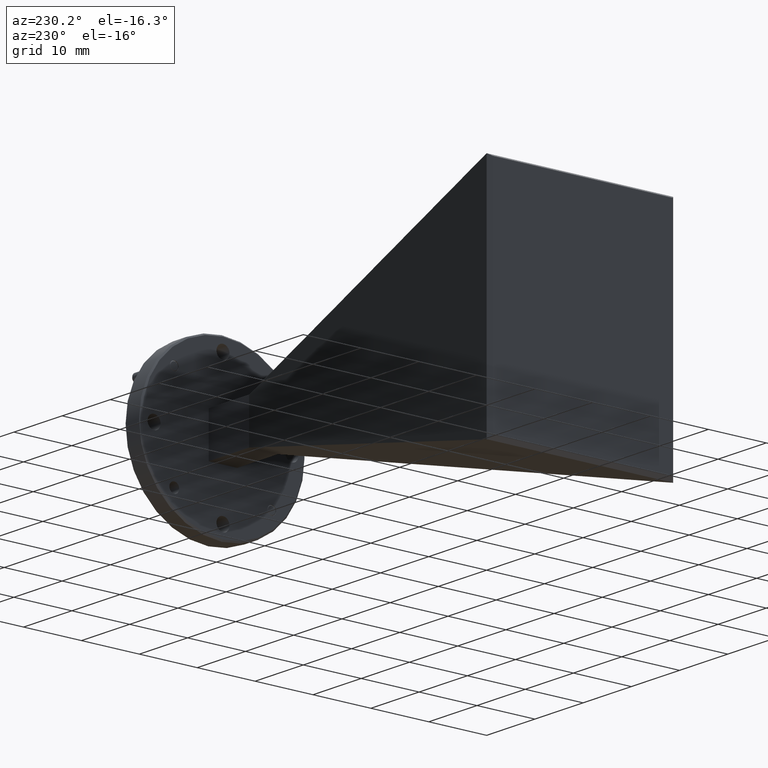
[diagram: clean part render]
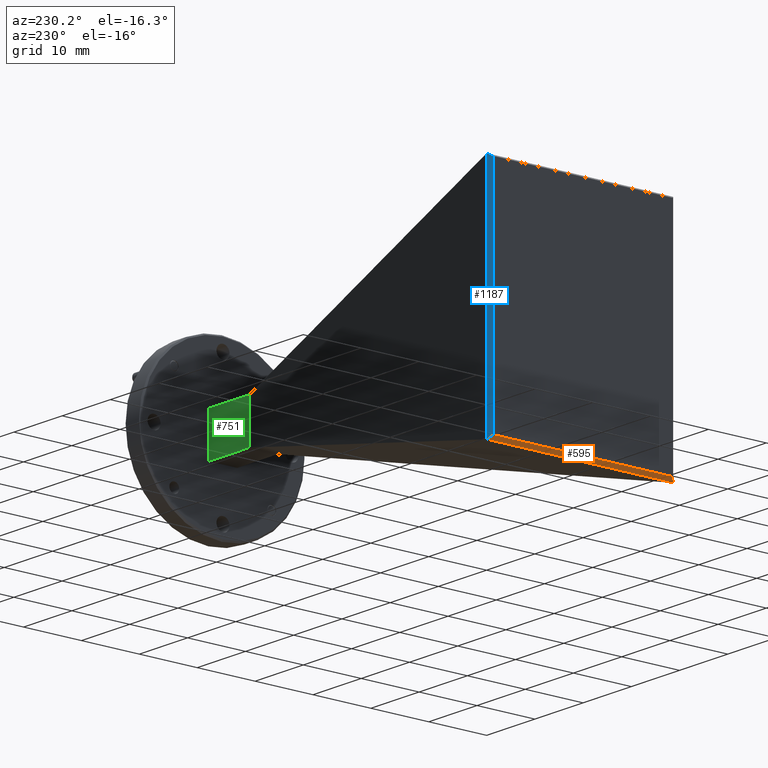
[diagram: same view with three faces highlighted in distinct colors, each labeled with its STEP entity id]
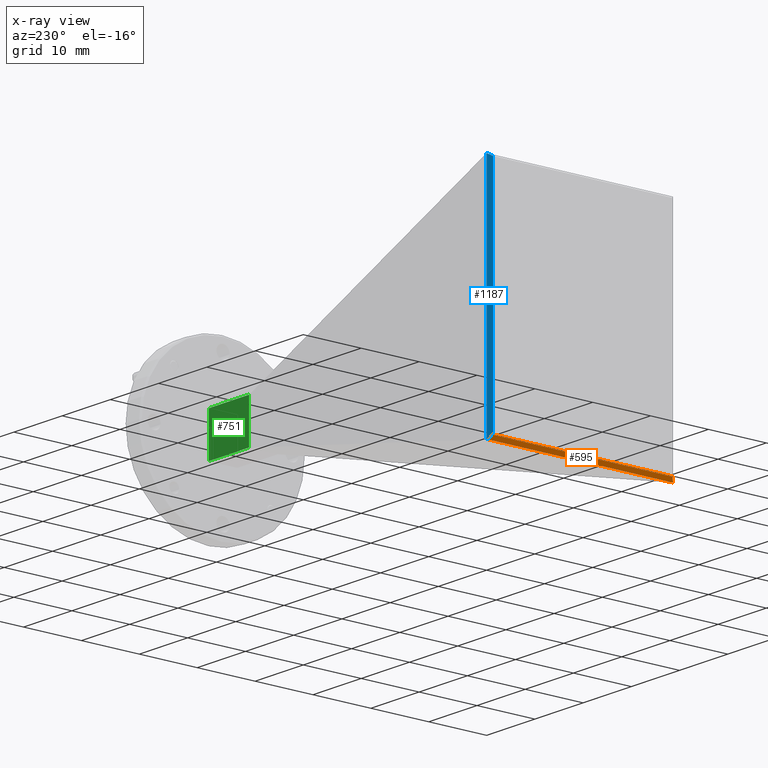
[diagram: x-ray of the same camera — body ghosted, the three highlighted faces saturated]
A machine part, auxiliary view with three faces highlighted in distinct colors.
The next image is the same camera in x-ray (body ghosted, the three faces saturated) — at least one of them is partly hidden behind the body in this view.
Their STEP definitions:

[orange] entity #595 — the highlighted planar face has unit normal (-0.7071, 0, -0.7071).
#28 = CARTESIAN_POINT ( 'NONE',  ( -0.5423577266019314900, 1.586671098379451600, 1.713089230720047200 ) ) ;
#40 = DIRECTION ( 'NONE',  ( -0.7071067811865434600, 0.0000000000000000000, 0.7071067811865515700 ) ) ;
#62 = CARTESIAN_POINT ( 'NONE',  ( -0.5423577266019312700, 0.9545936076045441500, 1.713089230720046900 ) ) ;
#67 = VERTEX_POINT ( 'NONE', #283 ) ;
#100 = VERTEX_POINT ( 'NONE', #1041 ) ;
#215 = ORIENTED_EDGE ( 'NONE', *, *, #1803, .F. ) ;
#249 = DIRECTION ( 'NONE',  ( -0.5773502691896235100, 0.5773502691896218500, 0.5773502691896317300 ) ) ;
#283 = CARTESIAN_POINT ( 'NONE',  ( -0.5423577266019316000, 2.215103324090613500, 1.713089230720047200 ) ) ;
#302 = LINE ( 'NONE', #1975, #360 ) ;
#360 = VECTOR ( 'NONE', #502, 39.37007874015748100 ) ;
#502 = DIRECTION ( 'NONE',  ( -0.0000000000000000000, -1.000000000000000000, 0.0000000000000000000 ) ) ;
#557 = PLANE ( 'NONE',  #1432 ) ;
#595 = ADVANCED_FACE ( 'NONE', ( #867 ), #557, .T. ) ;
#664 = VERTEX_POINT ( 'NONE', #2271 ) ;
#679 = EDGE_CURVE ( 'NONE', #100, #1429, #978, .T. ) ;
#714 = ORIENTED_EDGE ( 'NONE', *, *, #907, .T. ) ;
#867 = FACE_OUTER_BOUND ( 'NONE', #2192, .T. ) ;
#907 = EDGE_CURVE ( 'NONE', #67, #100, #1207, .T. ) ;
#978 = LINE ( 'NONE', #62, #1686 ) ;
#1016 = DIRECTION ( 'NONE',  ( -0.0000000000000000000, -1.000000000000000000, 0.0000000000000000000 ) ) ;
#1041 = CARTESIAN_POINT ( 'NONE',  ( -0.5423577266019316000, 0.9545936076045443700, 1.713089230720046900 ) ) ;
#1049 = CARTESIAN_POINT ( 'NONE',  ( -0.5664352173768390000, 2.199293635606550400, 1.737166721494954900 ) ) ;
#1113 = EDGE_CURVE ( 'NONE', #664, #67, #2122, .T. ) ;
#1114 = ORIENTED_EDGE ( 'NONE', *, *, #1113, .T. ) ;
#1196 = ORIENTED_EDGE ( 'NONE', *, *, #679, .T. ) ;
#1207 = LINE ( 'NONE', #1956, #2145 ) ;
#1429 = VERTEX_POINT ( 'NONE', #2053 ) ;
#1432 = AXIS2_PLACEMENT_3D ( 'NONE', #28, #1482, #40 ) ;
#1448 = VECTOR ( 'NONE', #2352, 39.37007874015748900 ) ;
#1482 = DIRECTION ( 'NONE',  ( -0.7071067811865515700, 0.0000000000000000000, -0.7071067811865434600 ) ) ;
#1686 = VECTOR ( 'NONE', #249, 39.37007874015748900 ) ;
#1803 = EDGE_CURVE ( 'NONE', #664, #1429, #302, .T. ) ;
#1956 = CARTESIAN_POINT ( 'NONE',  ( -0.5423577266019318200, 1.586671098379451600, 1.713089230720047200 ) ) ;
#1975 = CARTESIAN_POINT ( 'NONE',  ( -0.5664352173768390000, 1.586671098379451600, 1.737166721494954900 ) ) ;
#2053 = CARTESIAN_POINT ( 'NONE',  ( -0.5664352173768390000, 0.9786710983794517600, 1.737166721494954700 ) ) ;
#2122 = LINE ( 'NONE', #1049, #1448 ) ;
#2145 = VECTOR ( 'NONE', #1016, 39.37007874015748100 ) ;
#2192 = EDGE_LOOP ( 'NONE', ( #1196, #215, #1114, #714 ) ) ;
#2271 = CARTESIAN_POINT ( 'NONE',  ( -0.5664352173768390000, 2.199293635606550400, 1.737166721494955100 ) ) ;
#2352 = DIRECTION ( 'NONE',  ( 0.6413491096181759300, 0.4211206943192580800, -0.6413491096181850300 ) ) ;

[blue] entity #1187 — the highlighted planar face has unit normal (0.5489, -0.8359, 0).
#8 = EDGE_CURVE ( 'NONE', #1320, #75, #1684, .T. ) ;
#11 = CARTESIAN_POINT ( 'NONE',  ( -0.5370596398093886400, 2.218582137665279200, 3.271941004713996700 ) ) ;
#67 = VERTEX_POINT ( 'NONE', #283 ) ;
#74 = EDGE_LOOP ( 'NONE', ( #921, #924, #2162, #350, #2275, #1794 ) ) ;
#75 = VERTEX_POINT ( 'NONE', #2183 ) ;
#96 = CARTESIAN_POINT ( 'NONE',  ( -0.5370596398093886400, 2.218582137665278800, 2.493166721494955300 ) ) ;
#283 = CARTESIAN_POINT ( 'NONE',  ( -0.5423577266019316000, 2.215103324090613500, 1.713089230720047200 ) ) ;
#324 = LINE ( 'NONE', #2181, #1538 ) ;
#342 = DIRECTION ( 'NONE',  ( 0.8187785566637894000, 0.5376238761464325900, 0.2014007024437778300 ) ) ;
#350 = ORIENTED_EDGE ( 'NONE', *, *, #8, .T. ) ;
#368 = CARTESIAN_POINT ( 'NONE',  ( -0.5664352173768390000, 2.199293635606550400, 2.493166721494955300 ) ) ;
#409 = EDGE_CURVE ( 'NONE', #1320, #664, #956, .T. ) ;
#463 = EDGE_CURVE ( 'NONE', #67, #576, #324, .T. ) ;
#576 = VERTEX_POINT ( 'NONE', #1873 ) ;
#664 = VERTEX_POINT ( 'NONE', #2271 ) ;
#820 = DIRECTION ( 'NONE',  ( 0.7459007476269873300, 0.4897710716725718300, 0.4513938103720540100 ) ) ;
#885 = DIRECTION ( 'NONE',  ( -0.0000000000000000000, -0.0000000000000000000, -1.000000000000000000 ) ) ;
#908 = CARTESIAN_POINT ( 'NONE',  ( -0.5370596398093889800, 2.218582137665279200, 3.271941004713996700 ) ) ;
#921 = ORIENTED_EDGE ( 'NONE', *, *, #463, .F. ) ;
#924 = ORIENTED_EDGE ( 'NONE', *, *, #1113, .F. ) ;
#956 = LINE ( 'NONE', #2011, #1241 ) ;
#981 = LINE ( 'NONE', #11, #1658 ) ;
#1049 = CARTESIAN_POINT ( 'NONE',  ( -0.5664352173768390000, 2.199293635606550400, 1.737166721494954900 ) ) ;
#1070 = LINE ( 'NONE', #96, #2043 ) ;
#1110 = AXIS2_PLACEMENT_3D ( 'NONE', #368, #1650, #2018 ) ;
#1113 = EDGE_CURVE ( 'NONE', #664, #67, #2122, .T. ) ;
#1133 = FACE_OUTER_BOUND ( 'NONE', #74, .T. ) ;
#1187 = ADVANCED_FACE ( 'NONE', ( #1133 ), #1286, .F. ) ;
#1241 = VECTOR ( 'NONE', #885, 39.37007874015748100 ) ;
#1281 = EDGE_CURVE ( 'NONE', #1883, #75, #981, .T. ) ;
#1286 = PLANE ( 'NONE',  #1110 ) ;
#1320 = VERTEX_POINT ( 'NONE', #1875 ) ;
#1343 = DIRECTION ( 'NONE',  ( 0.0000000000000000000, -0.0000000000000000000, 1.000000000000000000 ) ) ;
#1448 = VECTOR ( 'NONE', #2352, 39.37007874015748900 ) ;
#1538 = VECTOR ( 'NONE', #342, 39.37007874015748100 ) ;
#1615 = VECTOR ( 'NONE', #820, 39.37007874015748900 ) ;
#1650 = DIRECTION ( 'NONE',  ( 0.5488708229281773500, -0.8359071836861706700, 0.0000000000000000000 ) ) ;
#1658 = VECTOR ( 'NONE', #2357, 39.37007874015748900 ) ;
#1684 = LINE ( 'NONE', #1775, #1615 ) ;
#1775 = CARTESIAN_POINT ( 'NONE',  ( -0.5664352173768390000, 2.199293635606550400, 3.254371526848874200 ) ) ;
#1794 = ORIENTED_EDGE ( 'NONE', *, *, #2211, .F. ) ;
#1873 = CARTESIAN_POINT ( 'NONE',  ( -0.5370596398093885300, 2.218582137665278800, 1.714392438275913900 ) ) ;
#1875 = CARTESIAN_POINT ( 'NONE',  ( -0.5664352173768390000, 2.199293635606550400, 3.254371526848874200 ) ) ;
#1883 = VERTEX_POINT ( 'NONE', #908 ) ;
#2011 = CARTESIAN_POINT ( 'NONE',  ( -0.5664352173768390000, 2.199293635606550400, 2.493166721494955300 ) ) ;
#2018 = DIRECTION ( 'NONE',  ( 0.8359071836861705600, 0.5488708229281772400, 0.0000000000000000000 ) ) ;
#2043 = VECTOR ( 'NONE', #1343, 39.37007874015748100 ) ;
#2122 = LINE ( 'NONE', #1049, #1448 ) ;
#2162 = ORIENTED_EDGE ( 'NONE', *, *, #409, .F. ) ;
#2181 = CARTESIAN_POINT ( 'NONE',  ( -0.5423577266019316000, 2.215103324090613500, 1.713089230720046900 ) ) ;
#2183 = CARTESIAN_POINT ( 'NONE',  ( -0.5373035758004188800, 2.218421965159585800, 3.272001007360065800 ) ) ;
#2211 = EDGE_CURVE ( 'NONE', #576, #1883, #1070, .T. ) ;
#2271 = CARTESIAN_POINT ( 'NONE',  ( -0.5664352173768390000, 2.199293635606550400, 1.737166721494955100 ) ) ;
#2275 = ORIENTED_EDGE ( 'NONE', *, *, #1281, .F. ) ;
#2352 = DIRECTION ( 'NONE',  ( 0.6413491096181759300, 0.4211206943192580800, -0.6413491096181850300 ) ) ;
#2357 = DIRECTION ( 'NONE',  ( -0.8187785566641102600, -0.5376238761463231200, 0.2014007024427653700 ) ) ;

[green] entity #751 — the highlighted planar face has unit normal (0, -1, 0).
#20 = ORIENTED_EDGE ( 'NONE', *, *, #1039, .F. ) ;
#89 = DIRECTION ( 'NONE',  ( 0.0000000000000000000, -0.0000000000000000000, -1.000000000000000000 ) ) ;
#169 = AXIS2_PLACEMENT_3D ( 'NONE', #1934, #828, #89 ) ;
#305 = CARTESIAN_POINT ( 'NONE',  ( 2.043564782623166700, 1.683671098379451200, 2.637166721494955500 ) ) ;
#349 = CARTESIAN_POINT ( 'NONE',  ( 2.043564782623166700, 1.683671098379451400, 2.349166721494955600 ) ) ;
#450 = VERTEX_POINT ( 'NONE', #534 ) ;
#498 = VECTOR ( 'NONE', #1445, 39.37007874015748100 ) ;
#532 = LINE ( 'NONE', #533, #498 ) ;
#533 = CARTESIAN_POINT ( 'NONE',  ( 2.373564782623161400, 1.683671098379451400, 2.493166721494955300 ) ) ;
#534 = CARTESIAN_POINT ( 'NONE',  ( 2.373564782623161400, 1.683671098379451400, 2.349166721494955600 ) ) ;
#604 = VERTEX_POINT ( 'NONE', #744 ) ;
#630 = PLANE ( 'NONE',  #169 ) ;
#694 = EDGE_LOOP ( 'NONE', ( #20, #2254, #853, #1373 ) ) ;
#744 = CARTESIAN_POINT ( 'NONE',  ( 2.373564782623161400, 1.683671098379451400, 2.637166721494955500 ) ) ;
#745 = EDGE_CURVE ( 'NONE', #883, #604, #1534, .T. ) ;
#751 = ADVANCED_FACE ( 'NONE', ( #1034 ), #630, .F. ) ;
#812 = DIRECTION ( 'NONE',  ( -1.000000000000000000, -0.0000000000000000000, 0.0000000000000000000 ) ) ;
#828 = DIRECTION ( 'NONE',  ( 0.0000000000000000000, -1.000000000000000000, 0.0000000000000000000 ) ) ;
#853 = ORIENTED_EDGE ( 'NONE', *, *, #1871, .T. ) ;
#858 = CARTESIAN_POINT ( 'NONE',  ( 2.043564782623166700, 1.683671098379450500, 2.493166721494955300 ) ) ;
#883 = VERTEX_POINT ( 'NONE', #305 ) ;
#1034 = FACE_OUTER_BOUND ( 'NONE', #694, .T. ) ;
#1039 = EDGE_CURVE ( 'NONE', #883, #1060, #2241, .T. ) ;
#1060 = VERTEX_POINT ( 'NONE', #349 ) ;
#1185 = VECTOR ( 'NONE', #2377, 39.37007874015748100 ) ;
#1211 = VECTOR ( 'NONE', #812, 39.37007874015748100 ) ;
#1373 = ORIENTED_EDGE ( 'NONE', *, *, #2288, .T. ) ;
#1445 = DIRECTION ( 'NONE',  ( 0.0000000000000000000, 0.0000000000000000000, -1.000000000000000000 ) ) ;
#1534 = LINE ( 'NONE', #1915, #2202 ) ;
#1716 = CARTESIAN_POINT ( 'NONE',  ( 2.043564782623161300, 1.683671098379451400, 2.349166721494955200 ) ) ;
#1871 = EDGE_CURVE ( 'NONE', #604, #450, #532, .T. ) ;
#1915 = CARTESIAN_POINT ( 'NONE',  ( 2.043564782623161300, 1.683671098379451200, 2.637166721494955500 ) ) ;
#1921 = LINE ( 'NONE', #1716, #1211 ) ;
#1934 = CARTESIAN_POINT ( 'NONE',  ( 2.043564782623161300, 1.683671098379451400, 2.349166721494955200 ) ) ;
#2101 = DIRECTION ( 'NONE',  ( 1.000000000000000000, -0.0000000000000000000, 0.0000000000000000000 ) ) ;
#2202 = VECTOR ( 'NONE', #2101, 39.37007874015748100 ) ;
#2241 = LINE ( 'NONE', #858, #1185 ) ;
#2254 = ORIENTED_EDGE ( 'NONE', *, *, #745, .T. ) ;
#2288 = EDGE_CURVE ( 'NONE', #450, #1060, #1921, .T. ) ;
#2377 = DIRECTION ( 'NONE',  ( -0.0000000000000000000, 0.0000000000000000000, -1.000000000000000000 ) ) ;